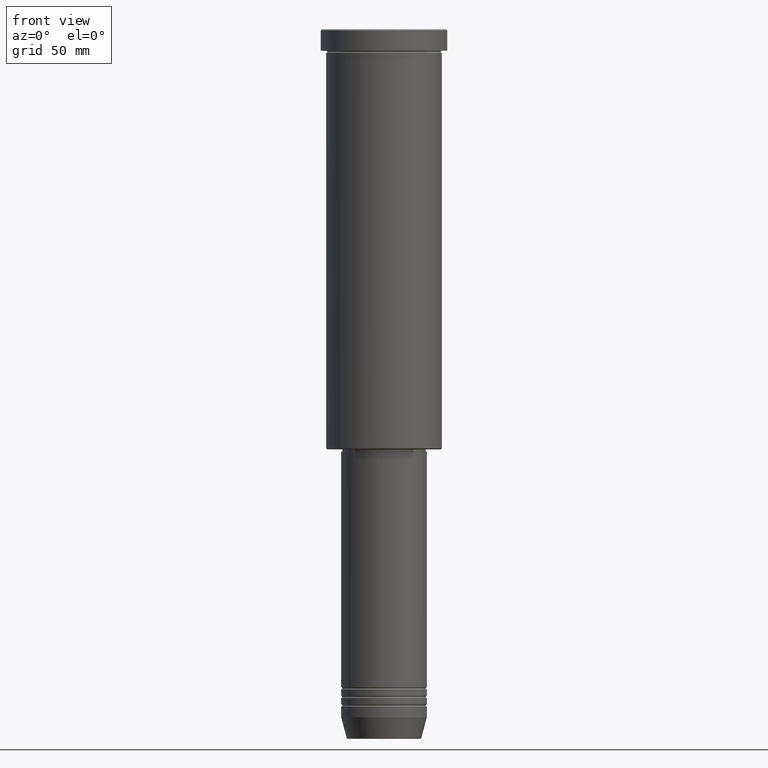
[diagram: clean part render]
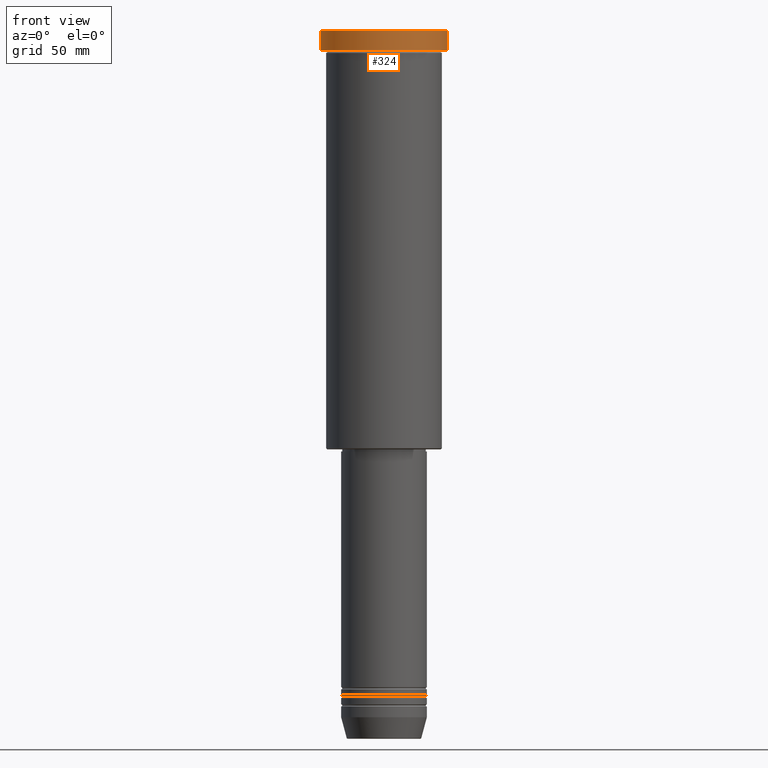
[diagram: same view with one face highlighted and labeled with its STEP entity id]
A machine part, front view. The second image highlights one B-rep face of the part: STEP entity #324.
In plain terms, the highlighted cylindrical surface (partial cylindrical patch) has radius 29.5 mm, axis along (-0, -0, 1).
Its self-contained STEP definition (entity closure, byte-faithful):
#10 = AXIS2_PLACEMENT_3D ( 'NONE', #319, #1040, #1045 ) ;
#46 = AXIS2_PLACEMENT_3D ( 'NONE', #1098, #271, #828 ) ;
#97 = ORIENTED_EDGE ( 'NONE', *, *, #212, .T. ) ;
#159 = EDGE_CURVE ( 'NONE', #1099, #238, #1119, .T. ) ;
#212 = EDGE_CURVE ( 'NONE', #497, #1099, #551, .T. ) ;
#238 = VERTEX_POINT ( 'NONE', #676 ) ;
#241 = DIRECTION ( 'NONE',  ( -0.000000000000000000, -0.000000000000000000, 1.000000000000000000 ) ) ;
#256 = CARTESIAN_POINT ( 'NONE',  ( -29.50000000000000000, 3.612708057484691604E-15, -0.5000000000001392220 ) ) ;
#271 = DIRECTION ( 'NONE',  ( -0.000000000000000000, -0.000000000000000000, 1.000000000000000000 ) ) ;
#308 = AXIS2_PLACEMENT_3D ( 'NONE', #417, #351, #899 ) ;
#319 = CARTESIAN_POINT ( 'NONE',  ( 0.000000000000000000, 0.000000000000000000, 0.000000000000000000 ) ) ;
#324 = ADVANCED_FACE ( 'NONE', ( #1127 ), #1147, .T. ) ;
#351 = DIRECTION ( 'NONE',  ( 0.000000000000000000, 0.000000000000000000, -1.000000000000000000 ) ) ;
#376 = EDGE_CURVE ( 'NONE', #497, #906, #894, .T. ) ;
#411 = EDGE_CURVE ( 'NONE', #238, #906, #835, .T. ) ;
#417 = CARTESIAN_POINT ( 'NONE',  ( 0.000000000000000000, 0.000000000000000000, -0.5000000000001392220 ) ) ;
#434 = ORIENTED_EDGE ( 'NONE', *, *, #411, .T. ) ;
#483 = ORIENTED_EDGE ( 'NONE', *, *, #376, .F. ) ;
#497 = VERTEX_POINT ( 'NONE', #696 ) ;
#538 = CARTESIAN_POINT ( 'NONE',  ( 29.50000000000000000, 0.000000000000000000, 0.000000000000000000 ) ) ;
#551 = CIRCLE ( 'NONE', #46, 29.50000000000000000 ) ;
#557 = CARTESIAN_POINT ( 'NONE',  ( 29.50000000000000000, 0.000000000000000000, -9.999999999999992895 ) ) ;
#633 = DIRECTION ( 'NONE',  ( -0.000000000000000000, -0.000000000000000000, 1.000000000000000000 ) ) ;
#676 = CARTESIAN_POINT ( 'NONE',  ( 29.50000000000000000, 0.000000000000000000, -0.5000000000001392220 ) ) ;
#696 = CARTESIAN_POINT ( 'NONE',  ( -29.50000000000000000, 3.612708057484691604E-15, -9.999999999999992895 ) ) ;
#773 = VECTOR ( 'NONE', #633, 1000.000000000000000 ) ;
#785 = EDGE_LOOP ( 'NONE', ( #483, #97, #877, #434 ) ) ;
#828 = DIRECTION ( 'NONE',  ( 1.000000000000000000, 0.000000000000000000, 0.000000000000000000 ) ) ;
#835 = CIRCLE ( 'NONE', #308, 29.50000000000000000 ) ;
#877 = ORIENTED_EDGE ( 'NONE', *, *, #159, .T. ) ;
#891 = VECTOR ( 'NONE', #241, 1000.000000000000000 ) ;
#894 = LINE ( 'NONE', #1073, #891 ) ;
#899 = DIRECTION ( 'NONE',  ( 1.000000000000000000, 0.000000000000000000, 0.000000000000000000 ) ) ;
#906 = VERTEX_POINT ( 'NONE', #256 ) ;
#1040 = DIRECTION ( 'NONE',  ( -0.000000000000000000, -0.000000000000000000, 1.000000000000000000 ) ) ;
#1045 = DIRECTION ( 'NONE',  ( 1.000000000000000000, 0.000000000000000000, 0.000000000000000000 ) ) ;
#1073 = CARTESIAN_POINT ( 'NONE',  ( -29.50000000000000000, 3.612708057484691604E-15, 0.000000000000000000 ) ) ;
#1098 = CARTESIAN_POINT ( 'NONE',  ( 0.000000000000000000, 0.000000000000000000, -9.999999999999992895 ) ) ;
#1099 = VERTEX_POINT ( 'NONE', #557 ) ;
#1119 = LINE ( 'NONE', #538, #773 ) ;
#1127 = FACE_OUTER_BOUND ( 'NONE', #785, .T. ) ;
#1147 = CYLINDRICAL_SURFACE ( 'NONE', #10, 29.50000000000000000 ) ;